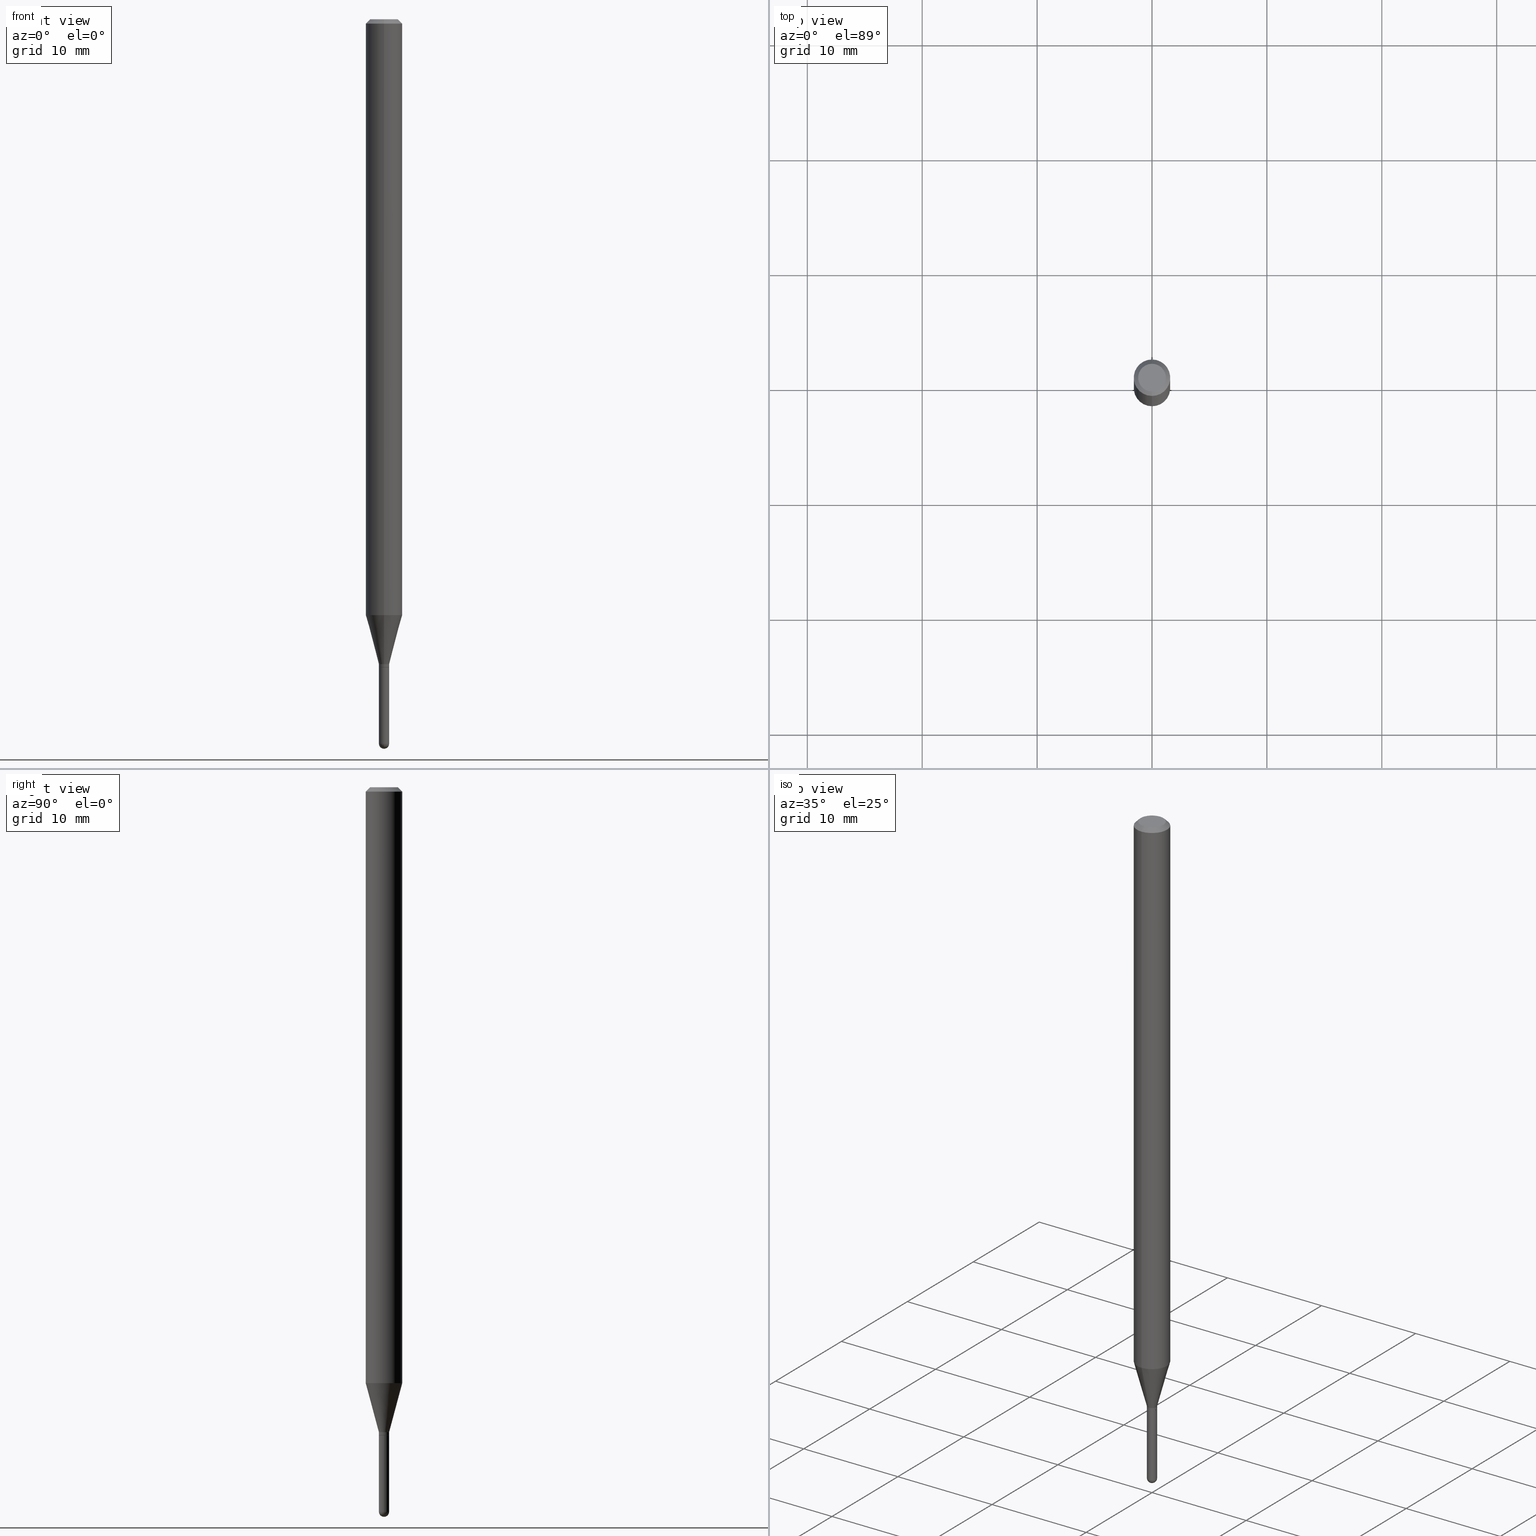
[diagram: canonical four-view strip — front | top / right | iso, engineering-drawing reading convention]
A machine part, canonical four-view strip (front | top / right | iso — engineering-drawing reading convention). The complete STEP part file that produces these views, byte-faithful:
ISO-10303-21;
HEADER;
FILE_DESCRIPTION (( 'STEP AP203' ),
    '1' );
FILE_NAME ('02753.STEP',
    '2024-03-07T21:14:14',
    ( '' ),
    ( '' ),
    'SwSTEP 2.0',
    'SolidWorks 2023',
    '' );
FILE_SCHEMA (( 'CONFIG_CONTROL_DESIGN' ));
ENDSEC;

DATA;
#1 = ORIENTED_EDGE ( 'NONE', *, *, #501, .F. ) ;
#2 = DIRECTION ( 'NONE',  ( -2.445439854335356088E-29, 3.491522799539868353E-15, 1.000000000000000000 ) ) ;
#3 = ORIENTED_EDGE ( 'NONE', *, *, #23, .F. ) ;
#4 = AXIS2_PLACEMENT_3D ( 'NONE', #469, #112, #233 ) ;
#5 = DIRECTION ( 'NONE',  ( -1.000000000000000000, 6.982962677686265922E-15, -4.876176775795935793E-29 ) ) ;
#6 = VERTEX_POINT ( 'NONE', #265 ) ;
#7 = DATE_TIME_ROLE ( 'classification_date' ) ;
#8 = VERTEX_POINT ( 'NONE', #353 ) ;
#9 = DATE_AND_TIME ( #90, #28 ) ;
#10 = DIRECTION ( 'NONE',  ( -2.445439854335356088E-29, 3.491522799539868353E-15, 1.000000000000000000 ) ) ;
#11 = AXIS2_PLACEMENT_3D ( 'NONE', #467, #2, #188 ) ;
#12 =( NAMED_UNIT ( * ) PLANE_ANGLE_UNIT ( ) SI_UNIT ( $, .RADIAN. ) );
#13 = DIRECTION ( 'NONE',  ( 1.000000000000000000, -6.982962677686265922E-15, 4.876176775795936353E-29 ) ) ;
#14 = SECURITY_CLASSIFICATION_LEVEL ( 'unclassified' ) ;
#15 = CARTESIAN_POINT ( 'NONE',  ( 5.428876476624489233E-29, -7.751180614978508027E-15, -2.219999999999999751 ) ) ;
#16 = ORIENTED_EDGE ( 'NONE', *, *, #341, .T. ) ;
#17 = PERSON_AND_ORGANIZATION ( #396, #391 ) ;
#18 = CARTESIAN_POINT ( 'NONE',  ( -1.187103655206122486E-16, -0.01700000000000775197, -2.219999999999999751 ) ) ;
#19 = VERTEX_POINT ( 'NONE', #422 ) ;
#20 = CIRCLE ( 'NONE', #72, 0.01749999999999965125 ) ;
#21 = DIRECTION ( 'NONE',  ( 6.982962677686265922E-15, 1.000000000000000000, -3.483106191921935554E-15 ) ) ;
#22 = DIRECTION ( 'NONE',  ( -6.982962677686265922E-15, -1.000000000000000000, 3.491522799539868353E-15 ) ) ;
#23 = EDGE_CURVE ( 'NONE', #135, #8, #311, .T. ) ;
#24 = ORIENTED_EDGE ( 'NONE', *, *, #29, .T. ) ;
#25 = UNCERTAINTY_MEASURE_WITH_UNIT (LENGTH_MEASURE( 1.000000000000000082E-05 ), #254, 'distance_accuracy_value', 'NONE');
#26 = DIRECTION ( 'NONE',  ( -1.000000000000000000, 6.982962677686265133E-15, -4.883557194083112901E-29 ) ) ;
#27 = AXIS2_PLACEMENT_3D ( 'NONE', #15, #413, #255 ) ;
#28 = LOCAL_TIME ( 16, 14, 14.00000000000000000, #362 ) ;
#29 = EDGE_CURVE ( 'NONE', #111, #256, #41, .T. ) ;
#30 = DIRECTION ( 'NONE',  ( -2.445468806185136877E-29, 3.491481338843145188E-15, 1.000000000000000000 ) ) ;
#31 = DIRECTION ( 'NONE',  ( -2.445439854335356088E-29, 3.491522799539868353E-15, 1.000000000000000000 ) ) ;
#32 = DIMENSIONAL_EXPONENTS ( 1.000000000000000000, 0.000000000000000000, 0.000000000000000000, 0.000000000000000000, 0.000000000000000000, 0.000000000000000000, 0.000000000000000000 ) ;
#33 = FACE_OUTER_BOUND ( 'NONE', #38, .T. ) ;
#34 = DIRECTION ( 'NONE',  ( 1.000000000000000000, -6.982962677686303787E-15, 0.000000000000000000 ) ) ;
#35 = DIRECTION ( 'NONE',  ( 1.000000000000000000, -6.982962677686303787E-15, 0.000000000000000000 ) ) ;
#36 = ORIENTED_EDGE ( 'NONE', *, *, #264, .F. ) ;
#37 = CARTESIAN_POINT ( 'NONE',  ( 1.222018468595639460E-16, 0.01749999999999225092, -2.220000000000000195 ) ) ;
#38 = EDGE_LOOP ( 'NONE', ( #212, #119 ) ) ;
#39 = DIRECTION ( 'NONE',  ( -6.982962677686265922E-15, -1.000000000000000000, 0.000000000000000000 ) ) ;
#40 = VERTEX_POINT ( 'NONE', #492 ) ;
#41 = CIRCLE ( 'NONE', #207, 0.01750000000000000167 ) ;
#42 = AXIS2_PLACEMENT_3D ( 'NONE', #484, #84, #126 ) ;
#43 = ADVANCED_FACE ( 'NONE', ( #289 ), #487, .T. ) ;
#44 = ORIENTED_EDGE ( 'NONE', *, *, #81, .F. ) ;
#45 = CALENDAR_DATE ( 2024, 7, 3 ) ;
#46 = LINE ( 'NONE', #203, #456 ) ;
#47 = PERSON_AND_ORGANIZATION ( #396, #391 ) ;
#48 = DIRECTION ( 'NONE',  ( 1.839019923739599921E-15, 0.2588190451025249028, 0.9659258262890670910 ) ) ;
#49 = CONICAL_SURFACE ( 'NONE', #312, 0.01749999999999965125, 0.2617993877991502405 ) ;
#50 = VECTOR ( 'NONE', #70, 39.37007874015748143 ) ;
#51 =( NAMED_UNIT ( * ) SI_UNIT ( $, .STERADIAN. ) SOLID_ANGLE_UNIT ( ) );
#52 = FACE_OUTER_BOUND ( 'NONE', #279, .T. ) ;
#53 = CALENDAR_DATE ( 2024, 7, 3 ) ;
#54 = DIRECTION ( 'NONE',  ( 6.982962677686265133E-15, 1.000000000000000000, 0.000000000000000000 ) ) ;
#55 = EDGE_CURVE ( 'NONE', #432, #256, #308, .T. ) ;
#56 = DIRECTION ( 'NONE',  ( -2.445468806185136597E-29, 3.491481338843145583E-15, 1.000000000000000000 ) ) ;
#57 = ORIENTED_EDGE ( 'NONE', *, *, #505, .F. ) ;
#58 = AXIS2_PLACEMENT_3D ( 'NONE', #416, #56, #218 ) ;
#59 = AXIS2_PLACEMENT_3D ( 'NONE', #104, #257, #68 ) ;
#60 = PLANE ( 'NONE',  #294 ) ;
#61 = CARTESIAN_POINT ( 'NONE',  ( -0.01750000000000000167, -8.085000519196929478E-15, -2.220000000000000195 ) ) ;
#62 = EDGE_CURVE ( 'NONE', #181, #135, #384, .T. ) ;
#63 = ORIENTED_EDGE ( 'NONE', *, *, #29, .F. ) ;
#64 = CARTESIAN_POINT ( 'NONE',  ( 6.069379770348537778E-29, -8.669745555576616428E-15, -2.482499999999999929 ) ) ;
#65 = ORIENTED_EDGE ( 'NONE', *, *, #151, .T. ) ;
#66 = DIRECTION ( 'NONE',  ( -2.445468806185136597E-29, 3.491481338843145583E-15, 1.000000000000000000 ) ) ;
#67 = CIRCLE ( 'NONE', #440, 0.01750000000000000167 ) ;
#68 = DIRECTION ( 'NONE',  ( -6.982962677686265922E-15, -1.000000000000000000, 3.483106191921935554E-15 ) ) ;
#69 = CARTESIAN_POINT ( 'NONE',  ( 5.404422078081136622E-29, -7.716265386983106677E-15, -2.209999999999999520 ) ) ;
#70 = DIRECTION ( 'NONE',  ( -2.445439854335356088E-29, 3.491522799539868353E-15, 1.000000000000000000 ) ) ;
#71 = ORIENTED_EDGE ( 'NONE', *, *, #170, .F. ) ;
#72 = AXIS2_PLACEMENT_3D ( 'NONE', #69, #110, #350 ) ;
#73 = FACE_OUTER_BOUND ( 'NONE', #216, .T. ) ;
#74 = ADVANCED_FACE ( 'NONE', ( #442 ), #100, .T. ) ;
#75 = ORIENTED_EDGE ( 'NONE', *, *, #394, .F. ) ;
#76 = DIRECTION ( 'NONE',  ( -2.445439854335356088E-29, 3.491522799539868353E-15, 1.000000000000000000 ) ) ;
#77 = EDGE_LOOP ( 'NONE', ( #1, #75 ) ) ;
#78 = CC_DESIGN_DATE_AND_TIME_ASSIGNMENT ( #407, #7, ( #447 ) ) ;
#79 = DIRECTION ( 'NONE',  ( -6.982962677686265922E-15, -1.000000000000000000, 0.000000000000000000 ) ) ;
#80 = ORIENTED_EDGE ( 'NONE', *, *, #264, .T. ) ;
#81 = EDGE_CURVE ( 'NONE', #19, #361, #148, .T. ) ;
#82 = PERSON_AND_ORGANIZATION_ROLE ( 'creator' ) ;
#83 = CARTESIAN_POINT ( 'NONE',  ( 4.993729317835632026E-29, -7.129891065218049224E-15, -2.042057713659399365 ) ) ;
#84 = DIRECTION ( 'NONE',  ( 0.000000000000000000, 0.000000000000000000, 1.000000000000000000 ) ) ;
#85 = CARTESIAN_POINT ( 'NONE',  ( 6.069379770348537778E-29, -8.669745555576616428E-15, -2.482499999999999929 ) ) ;
#86 = EDGE_CURVE ( 'NONE', #320, #361, #333, .T. ) ;
#87 = PERSON_AND_ORGANIZATION_ROLE ( 'design_supplier' ) ;
#88 = CARTESIAN_POINT ( 'NONE',  ( 1.207922650792713238E-16, 0.01699999999999225048, -2.219999999999999751 ) ) ;
#89 = APPROVAL_PERSON_ORGANIZATION ( #322, #399, #481 ) ;
#90 = CALENDAR_DATE ( 2024, 7, 3 ) ;
#91 = CC_DESIGN_APPROVAL ( #221, ( #447 ) ) ;
#92 = DIRECTION ( 'NONE',  ( -6.982962677686265922E-15, -1.000000000000000000, 3.491522799539868747E-15 ) ) ;
#93 = ORIENTED_EDGE ( 'NONE', *, *, #170, .T. ) ;
#94 = ADVANCED_FACE ( 'NONE', ( #324 ), #198, .T. ) ;
#95 = CARTESIAN_POINT ( 'NONE',  ( 4.440892098501123144E-16, 0.06249999999999285294, -2.042057713659399809 ) ) ;
#96 = CYLINDRICAL_SURFACE ( 'NONE', #242, 0.06250000000000000000 ) ;
#97 = ORIENTED_EDGE ( 'NONE', *, *, #364, .F. ) ;
#98 = EDGE_CURVE ( 'NONE', #253, #135, #169, .T. ) ;
#99 = AXIS2_PLACEMENT_3D ( 'NONE', #215, #133, #441 ) ;
#100 = CONICAL_SURFACE ( 'NONE', #99, 0.01749999999999965125, 0.2617993877991502405 ) ;
#101 =( GEOMETRIC_REPRESENTATION_CONTEXT ( 3 ) GLOBAL_UNCERTAINTY_ASSIGNED_CONTEXT ( ( #25 ) ) GLOBAL_UNIT_ASSIGNED_CONTEXT ( ( #254, #12, #51 ) ) REPRESENTATION_CONTEXT ( 'NONE', 'WORKASPACE' ) );
#102 = CARTESIAN_POINT ( 'NONE',  ( -4.364351673553912750E-16, -0.06250000000000005551, -0.01500000000000011047 ) ) ;
#103 = VERTEX_POINT ( 'NONE', #18 ) ;
#104 = CARTESIAN_POINT ( 'NONE',  ( 3.668159781503114515E-31, -5.237284199309917136E-17, -0.01500000000000032904 ) ) ;
#105 = ORIENTED_EDGE ( 'NONE', *, *, #62, .T. ) ;
#106 = DIRECTION ( 'NONE',  ( 6.982962677686265133E-15, 1.000000000000000000, 0.000000000000000000 ) ) ;
#107 = CARTESIAN_POINT ( 'NONE',  ( 6.070876311354603530E-29, -8.667602423678111529E-15, -2.482500000000000817 ) ) ;
#108 = ADVANCED_FACE ( 'NONE', ( #129 ), #127, .T. ) ;
#109 = DIRECTION ( 'NONE',  ( -2.445439854335356088E-29, 3.491522799539868353E-15, 1.000000000000000000 ) ) ;
#110 = DIRECTION ( 'NONE',  ( -2.445439854335356088E-29, 3.491522799539868353E-15, 1.000000000000000000 ) ) ;
#111 = VERTEX_POINT ( 'NONE', #329 ) ;
#112 = DIRECTION ( 'NONE',  ( -2.445468806185136597E-29, 3.491481338843145583E-15, 1.000000000000000000 ) ) ;
#113 = DIRECTION ( 'NONE',  ( -2.445439854335356088E-29, 3.491522799539868353E-15, 1.000000000000000000 ) ) ;
#114 = CIRCLE ( 'NONE', #507, 0.01700000000000000122 ) ;
#115 = DIRECTION ( 'NONE',  ( 1.000000000000000000, -6.982962677686303787E-15, 0.000000000000000000 ) ) ;
#116 = ORIENTED_EDGE ( 'NONE', *, *, #360, .T. ) ;
#117 = EDGE_CURVE ( 'NONE', #6, #258, #331, .T. ) ;
#118 = DIRECTION ( 'NONE',  ( -2.445439854335356088E-29, 3.491522799539868353E-15, 1.000000000000000000 ) ) ;
#119 = ORIENTED_EDGE ( 'NONE', *, *, #146, .T. ) ;
#120 = ADVANCED_FACE ( 'NONE', ( #52 ), #451, .T. ) ;
#121 = DIRECTION ( 'NONE',  ( 1.000000000000000000, -6.982962677686248567E-15, 0.000000000000000000 ) ) ;
#122 = CIRCLE ( 'NONE', #480, 0.01750000000000000167 ) ;
#123 = CIRCLE ( 'NONE', #208, 0.04749999999999999362 ) ;
#124 = MECHANICAL_CONTEXT ( 'NONE', #415, 'mechanical' ) ;
#125 = DIRECTION ( 'NONE',  ( -2.445439854335356088E-29, 3.491522799539868353E-15, 1.000000000000000000 ) ) ;
#126 = DIRECTION ( 'NONE',  ( 1.000000000000000000, 0.000000000000000000, 0.000000000000000000 ) ) ;
#127 = CYLINDRICAL_SURFACE ( 'NONE', #424, 0.01750000000000000167 ) ;
#128 = APPLICATION_PROTOCOL_DEFINITION ( 'international standard', 'config_control_design', 1994, #415 ) ;
#129 = FACE_OUTER_BOUND ( 'NONE', #414, .T. ) ;
#130 = ORIENTED_EDGE ( 'NONE', *, *, #382, .F. ) ;
#131 = AXIS2_PLACEMENT_3D ( 'NONE', #248, #410, #368 ) ;
#132 = PERSON_AND_ORGANIZATION ( #396, #391 ) ;
#133 = DIRECTION ( 'NONE',  ( -2.445439854335356088E-29, 3.491522799539868353E-15, 1.000000000000000000 ) ) ;
#134 = EDGE_CURVE ( 'NONE', #488, #498, #390, .T. ) ;
#135 = VERTEX_POINT ( 'NONE', #95 ) ;
#136 = CARTESIAN_POINT ( 'NONE',  ( 1.225686219186703432E-16, 0.01699999999999225048, -2.219999999999999751 ) ) ;
#137 = ADVANCED_FACE ( 'NONE', ( #363 ), #334, .T. ) ;
#138 = FACE_OUTER_BOUND ( 'NONE', #401, .T. ) ;
#139 = ORIENTED_EDGE ( 'NONE', *, *, #464, .T. ) ;
#140 = CONICAL_SURFACE ( 'NONE', #276, 0.06250000000000000000, 0.7853981633974483900 ) ;
#141 = EDGE_CURVE ( 'NONE', #274, #258, #240, .T. ) ;
#142 = DIRECTION ( 'NONE',  ( -2.445439854335356088E-29, 3.491522799539868353E-15, 1.000000000000000000 ) ) ;
#143 = DESIGN_CONTEXT ( 'detailed design', #508, 'design' ) ;
#144 = DIRECTION ( 'NONE',  ( -2.445439854335356088E-29, 3.491522799539868353E-15, 1.000000000000000000 ) ) ;
#145 = CARTESIAN_POINT ( 'NONE',  ( 5.428876476624489233E-29, -7.751180614978508027E-15, -2.219999999999999751 ) ) ;
#146 = EDGE_CURVE ( 'NONE', #258, #274, #122, .T. ) ;
#147 =( LENGTH_UNIT ( ) NAMED_UNIT ( * ) SI_UNIT ( $, .METRE. ) );
#148 = CIRCLE ( 'NONE', #131, 0.01749999999999965472 ) ;
#149 = CARTESIAN_POINT ( 'NONE',  ( 6.070876311354603530E-29, -8.667602423678111529E-15, -2.482500000000000817 ) ) ;
#150 = VERTEX_POINT ( 'NONE', #284 ) ;
#151 = EDGE_CURVE ( 'NONE', #135, #181, #259, .T. ) ;
#152 = CARTESIAN_POINT ( 'NONE',  ( 6.069379770348537778E-29, -8.669745555576616428E-15, -2.482499999999999929 ) ) ;
#153 = ORIENTED_EDGE ( 'NONE', *, *, #449, .T. ) ;
#154 = CARTESIAN_POINT ( 'NONE',  ( 5.428876476624489233E-29, -7.751180614978508027E-15, -2.219999999999999751 ) ) ;
#155 = CC_DESIGN_PERSON_AND_ORGANIZATION_ASSIGNMENT ( #17, #213, ( #338 ) ) ;
#156 = AXIS2_PLACEMENT_3D ( 'NONE', #243, #175, #21 ) ;
#157 = EDGE_LOOP ( 'NONE', ( #105, #315, #36, #184 ) ) ;
#158 = CC_DESIGN_APPROVAL ( #399, ( #314 ) ) ;
#159 = CARTESIAN_POINT ( 'NONE',  ( 3.840629472727447874E-16, 0.04749999999999999362, -4.939923113072091241E-16 ) ) ;
#160 = ORIENTED_EDGE ( 'NONE', *, *, #230, .F. ) ;
#161 = APPROVAL_STATUS ( 'not_yet_approved' ) ;
#162 = ORIENTED_EDGE ( 'NONE', *, *, #141, .F. ) ;
#163 = PRODUCT_DEFINITION ( 'UNKNOWN', '', #314, #143 ) ;
#164 = DIRECTION ( 'NONE',  ( -2.445439854335356088E-29, 3.491522799539868353E-15, 1.000000000000000000 ) ) ;
#165 = AXIS2_PLACEMENT_3D ( 'NONE', #83, #10, #405 ) ;
#166 = LOCAL_TIME ( 16, 14, 14.00000000000000000, #288 ) ;
#167 = CIRCLE ( 'NONE', #349, 0.01749999999999973799 ) ;
#168 = PERSON_AND_ORGANIZATION ( #396, #391 ) ;
#169 = LINE ( 'NONE', #445, #283 ) ;
#170 = EDGE_CURVE ( 'NONE', #498, #235, #46, .T. ) ;
#171 = APPROVAL_STATUS ( 'not_yet_approved' ) ;
#172 = DIRECTION ( 'NONE',  ( -2.445468806185136597E-29, 3.491481338843145583E-15, 1.000000000000000000 ) ) ;
#173 = EDGE_LOOP ( 'NONE', ( #458, #93, #80, #510 ) ) ;
#174 = CALENDAR_DATE ( 2024, 7, 3 ) ;
#175 = DIRECTION ( 'NONE',  ( 2.445439854335356088E-29, -3.491522799539868353E-15, -1.000000000000000000 ) ) ;
#176 = CC_DESIGN_PERSON_AND_ORGANIZATION_ASSIGNMENT ( #365, #286, ( #314 ) ) ;
#177 = ORIENTED_EDGE ( 'NONE', *, *, #378, .F. ) ;
#178 = VECTOR ( 'NONE', #113, 39.37007874015748143 ) ;
#179 = DIRECTION ( 'NONE',  ( -6.982962677686265922E-15, -1.000000000000000000, 3.491522799539868747E-15 ) ) ;
#180 = EDGE_CURVE ( 'NONE', #488, #8, #502, .T. ) ;
#181 = VERTEX_POINT ( 'NONE', #269 ) ;
#182 = CARTESIAN_POINT ( 'NONE',  ( 1.222018468595694434E-16, 0.01749999999999120315, -2.482500000000000817 ) ) ;
#183 = DIRECTION ( 'NONE',  ( -1.000000000000000000, 6.982962677686265133E-15, -4.883557194083112901E-29 ) ) ;
#184 = ORIENTED_EDGE ( 'NONE', *, *, #360, .F. ) ;
#185 = AXIS2_PLACEMENT_3D ( 'NONE', #37, #428, #5 ) ;
#186 = CARTESIAN_POINT ( 'NONE',  ( 0.01750000000000000167, -1.222018468595096625E-16, 8.533309357642889039E-31 ) ) ;
#187 = FACE_OUTER_BOUND ( 'NONE', #299, .T. ) ;
#188 = DIRECTION ( 'NONE',  ( -6.982962677686265922E-15, -1.000000000000000000, 3.483106191921935554E-15 ) ) ;
#189 = LINE ( 'NONE', #431, #419 ) ;
#190 = CC_DESIGN_APPROVAL ( #358, ( #163 ) ) ;
#191 = ADVANCED_FACE ( 'NONE', ( #261 ), #49, .T. ) ;
#192 = ORIENTED_EDGE ( 'NONE', *, *, #62, .F. ) ;
#193 = CARTESIAN_POINT ( 'NONE',  ( 5.404422078081136622E-29, -7.716265386983106677E-15, -2.209999999999999520 ) ) ;
#194 = ORIENTED_EDGE ( 'NONE', *, *, #439, .F. ) ;
#195 = DIRECTION ( 'NONE',  ( -6.982962677686265922E-15, -1.000000000000000000, 0.000000000000000000 ) ) ;
#196 = ORIENTED_EDGE ( 'NONE', *, *, #341, .F. ) ;
#197 = CARTESIAN_POINT ( 'NONE',  ( 8.024588080059081433E-45, -1.145725673390447767E-30, -3.281449783290653832E-16 ) ) ;
#198 = CONICAL_SURFACE ( 'NONE', #156, 0.06250000000000000000, 0.7853981633974483900 ) ;
#199 = EDGE_LOOP ( 'NONE', ( #3, #65, #116, #194 ) ) ;
#200 = CIRCLE ( 'NONE', #335, 0.01749999999999965125 ) ;
#201 = ORIENTED_EDGE ( 'NONE', *, *, #394, .T. ) ;
#202 = DATE_AND_TIME ( #45, #166 ) ;
#203 = CARTESIAN_POINT ( 'NONE',  ( -4.287811248607203282E-16, -0.06250000000000005551, -0.01500000000000011047 ) ) ;
#204 = PERSON_AND_ORGANIZATION ( #396, #391 ) ;
#205 = CARTESIAN_POINT ( 'NONE',  ( 0.000000000000000000, 0.000000000000000000, 0.000000000000000000 ) ) ;
#206 = ADVANCED_FACE ( 'NONE', ( #306 ), #340, .T. ) ;
#207 = AXIS2_PLACEMENT_3D ( 'NONE', #225, #389, #34 ) ;
#208 = AXIS2_PLACEMENT_3D ( 'NONE', #197, #509, #313 ) ;
#209 = CC_DESIGN_SECURITY_CLASSIFICATION ( #447, ( #314 ) ) ;
#210 = DATE_AND_TIME ( #174, #385 ) ;
#211 = CARTESIAN_POINT ( 'NONE',  ( 8.024588080059081433E-45, -1.145725673390447767E-30, -3.281449783290653832E-16 ) ) ;
#212 = ORIENTED_EDGE ( 'NONE', *, *, #141, .T. ) ;
#213 = PERSON_AND_ORGANIZATION_ROLE ( 'design_owner' ) ;
#214 = CC_DESIGN_PERSON_AND_ORGANIZATION_ASSIGNMENT ( #168, #369, ( #447 ) ) ;
#215 = CARTESIAN_POINT ( 'NONE',  ( 5.404422078081136622E-29, -7.716265386983106677E-15, -2.209999999999999520 ) ) ;
#216 = EDGE_LOOP ( 'NONE', ( #474, #395, #496, #16, #318 ) ) ;
#217 = ADVANCED_FACE ( 'NONE', ( #347 ), #96, .T. ) ;
#218 = DIRECTION ( 'NONE',  ( 1.000000000000000000, -6.982962677686248567E-15, 0.000000000000000000 ) ) ;
#219 = AXIS2_PLACEMENT_3D ( 'NONE', #145, #300, #462 ) ;
#220 = DIRECTION ( 'NONE',  ( -2.445439854335355808E-29, 3.491522799539868353E-15, 1.000000000000000000 ) ) ;
#221 = APPROVAL ( #171, 'UNSPECIFIED' ) ;
#222 = CARTESIAN_POINT ( 'NONE',  ( 0.000000000000000000, 0.000000000000000000, 0.000000000000000000 ) ) ;
#223 = EDGE_LOOP ( 'NONE', ( #450, #398, #339, #251 ) ) ;
#224 = DIRECTION ( 'NONE',  ( 1.000000000000000000, -6.982962677686303787E-15, 0.000000000000000000 ) ) ;
#225 = CARTESIAN_POINT ( 'NONE',  ( 6.070876311354603530E-29, -8.667602423678111529E-15, -2.482500000000000817 ) ) ;
#226 = LOCAL_TIME ( 16, 14, 14.00000000000000000, #446 ) ;
#227 = FACE_OUTER_BOUND ( 'NONE', #199, .T. ) ;
#228 = EDGE_CURVE ( 'NONE', #19, #40, #387, .T. ) ;
#229 = DIRECTION ( 'NONE',  ( 4.937700262164548042E-15, 0.7071067811865451302, -0.7071067811865499042 ) ) ;
#230 = EDGE_CURVE ( 'NONE', #6, #150, #67, .T. ) ;
#231 = LINE ( 'NONE', #280, #367 ) ;
#232 = VECTOR ( 'NONE', #229, 39.37007874015748143 ) ;
#233 = DIRECTION ( 'NONE',  ( 1.000000000000000000, -6.982962677686265922E-15, 4.876176775795936353E-29 ) ) ;
#234 = CIRCLE ( 'NONE', #457, 0.01750000000000000167 ) ;
#235 = VERTEX_POINT ( 'NONE', #102 ) ;
#236 = DIRECTION ( 'NONE',  ( -2.445468806185136597E-29, 3.491481338843145583E-15, 1.000000000000000000 ) ) ;
#237 = ORIENTED_EDGE ( 'NONE', *, *, #477, .F. ) ;
#238 = CARTESIAN_POINT ( 'NONE',  ( 5.428876476624489233E-29, -7.751180614978508027E-15, -2.219999999999999751 ) ) ;
#239 = ORIENTED_EDGE ( 'NONE', *, *, #464, .F. ) ;
#240 = CIRCLE ( 'NONE', #58, 0.01750000000000000167 ) ;
#241 = ORIENTED_EDGE ( 'NONE', *, *, #511, .F. ) ;
#242 = AXIS2_PLACEMENT_3D ( 'NONE', #346, #461, #22 ) ;
#243 = CARTESIAN_POINT ( 'NONE',  ( 3.668159781503114515E-31, -5.237284199309917136E-17, -0.01500000000000032904 ) ) ;
#244 = PERSON_AND_ORGANIZATION ( #396, #391 ) ;
#245 = ADVANCED_FACE ( 'NONE', ( #418 ), #60, .F. ) ;
#246 = CARTESIAN_POINT ( 'NONE',  ( 4.993729317835632026E-29, -7.129891065218049224E-15, -2.042057713659399365 ) ) ;
#247 = CALENDAR_DATE ( 2024, 7, 3 ) ;
#248 = CARTESIAN_POINT ( 'NONE',  ( 5.427653756697323004E-29, -7.749434853578739379E-15, -2.219500000000000028 ) ) ;
#249 = VECTOR ( 'NONE', #406, 39.37007874015748143 ) ;
#250 = CC_DESIGN_DATE_AND_TIME_ASSIGNMENT ( #202, #326, ( #163 ) ) ;
#251 = ORIENTED_EDGE ( 'NONE', *, *, #151, .F. ) ;
#252 = DIRECTION ( 'NONE',  ( -6.982962677686266711E-15, -1.000000000000000000, 3.491522799539868747E-15 ) ) ;
#253 = VERTEX_POINT ( 'NONE', #459 ) ;
#254 =( CONVERSION_BASED_UNIT ( 'INCH', #319 ) LENGTH_UNIT ( ) NAMED_UNIT ( #32 ) );
#255 = DIRECTION ( 'NONE',  ( -6.982962677686265922E-15, -1.000000000000000000, 0.000000000000000000 ) ) ;
#256 = VERTEX_POINT ( 'NONE', #182 ) ;
#257 = DIRECTION ( 'NONE',  ( -2.445439854335356088E-29, 3.491522799539868353E-15, 1.000000000000000000 ) ) ;
#258 = VERTEX_POINT ( 'NONE', #61 ) ;
#259 = CIRCLE ( 'NONE', #165, 0.06250000000000000000 ) ;
#260 = CIRCLE ( 'NONE', #491, 0.01749999999999965472 ) ;
#261 = FACE_OUTER_BOUND ( 'NONE', #223, .T. ) ;
#262 = EDGE_LOOP ( 'NONE', ( #417, #476, #160, #239 ) ) ;
#263 = CYLINDRICAL_SURFACE ( 'NONE', #375, 0.06250000000000000000 ) ;
#264 = EDGE_CURVE ( 'NONE', #235, #8, #392, .T. ) ;
#265 = CARTESIAN_POINT ( 'NONE',  ( -0.01750000000000000513, -8.085000519196929478E-15, -2.482500000000000817 ) ) ;
#266 = DIRECTION ( 'NONE',  ( -6.982962677686265922E-15, -1.000000000000000000, 0.000000000000000000 ) ) ;
#267 = PRODUCT_RELATED_PRODUCT_CATEGORY ( 'detail', '', ( #338 ) ) ;
#268 = VECTOR ( 'NONE', #142, 39.37007874015748143 ) ;
#269 = CARTESIAN_POINT ( 'NONE',  ( -4.364351673553418233E-16, -0.06250000000000713318, -2.042057713659398921 ) ) ;
#270 = ADVANCED_FACE ( 'NONE', ( #227 ), #263, .T. ) ;
#271 = DIRECTION ( 'NONE',  ( -2.445439854335356088E-29, 3.491522799539868353E-15, 1.000000000000000000 ) ) ;
#272 = DIRECTION ( 'NONE',  ( -4.937700262164674260E-15, -0.7071067811865632269, 0.7071067811865319186 ) ) ;
#273 = CC_DESIGN_PERSON_AND_ORGANIZATION_ASSIGNMENT ( #204, #82, ( #163 ) ) ;
#274 = VERTEX_POINT ( 'NONE', #497 ) ;
#275 = DIRECTION ( 'NONE',  ( 2.445439854335355808E-29, -3.491522799539868353E-15, -1.000000000000000000 ) ) ;
#276 = AXIS2_PLACEMENT_3D ( 'NONE', #386, #377, #421 ) ;
#277 = ORIENTED_EDGE ( 'NONE', *, *, #477, .T. ) ;
#278 = FACE_OUTER_BOUND ( 'NONE', #359, .T. ) ;
#279 = EDGE_LOOP ( 'NONE', ( #241, #411, #435, #336 ) ) ;
#280 = CARTESIAN_POINT ( 'NONE',  ( 1.243449787580150299E-16, 0.01749999999999965125, -6.110164899194648280E-17 ) ) ;
#281 = ORIENTED_EDGE ( 'NONE', *, *, #134, .T. ) ;
#282 = APPROVAL_DATE_TIME ( #9, #358 ) ;
#283 = VECTOR ( 'NONE', #48, 39.37007874015748143 ) ;
#284 = CARTESIAN_POINT ( 'NONE',  ( -1.243449787579559146E-16, -0.01750000000000853650, -2.482500000000000817 ) ) ;
#285 = AXIS2_PLACEMENT_3D ( 'NONE', #309, #275, #356 ) ;
#286 = PERSON_AND_ORGANIZATION_ROLE ( 'creator' ) ;
#287 = DIRECTION ( 'NONE',  ( -6.982962677686265922E-15, -1.000000000000000000, 4.370956789862821150E-15 ) ) ;
#288 = COORDINATED_UNIVERSAL_TIME_OFFSET ( 5, 0, .BEHIND. ) ;
#289 = FACE_OUTER_BOUND ( 'NONE', #500, .T. ) ;
#290 = CC_DESIGN_PERSON_AND_ORGANIZATION_ASSIGNMENT ( #244, #87, ( #314 ) ) ;
#291 = APPROVAL_ROLE ( '' ) ;
#292 = CARTESIAN_POINT ( 'NONE',  ( 0.000000000000000000, 0.000000000000000000, 0.000000000000000000 ) ) ;
#293 = AXIS2_PLACEMENT_3D ( 'NONE', #292, #164, #179 ) ;
#294 = AXIS2_PLACEMENT_3D ( 'NONE', #337, #220, #305 ) ;
#295 = APPROVAL_PERSON_ORGANIZATION ( #132, #221, #291 ) ;
#296 = ORIENTED_EDGE ( 'NONE', *, *, #117, .T. ) ;
#297 = SHAPE_DEFINITION_REPRESENTATION ( #433, #495 ) ;
#298 = DIRECTION ( 'NONE',  ( -2.445468806185136877E-29, 3.491481338843145188E-15, 1.000000000000000000 ) ) ;
#299 = EDGE_LOOP ( 'NONE', ( #376, #201, #153, #57 ) ) ;
#300 = DIRECTION ( 'NONE',  ( -2.445439854335356088E-29, 3.491522799539868353E-15, 1.000000000000000000 ) ) ;
#301 = ORIENTED_EDGE ( 'NONE', *, *, #180, .T. ) ;
#302 = CARTESIAN_POINT ( 'NONE',  ( 5.404422078081136622E-29, -7.716265386983106677E-15, -2.209999999999999520 ) ) ;
#303 = AXIS2_PLACEMENT_3D ( 'NONE', #455, #183, #106 ) ;
#304 = AXIS2_PLACEMENT_3D ( 'NONE', #393, #236, #35 ) ;
#305 = DIRECTION ( 'NONE',  ( -6.982962677686265922E-15, -1.000000000000000000, 3.491522799539868353E-15 ) ) ;
#306 = FACE_OUTER_BOUND ( 'NONE', #262, .T. ) ;
#307 = DIRECTION ( 'NONE',  ( -4.851104656540964275E-15, -0.7071067811865500152, -0.7071067811865450192 ) ) ;
#308 = CIRCLE ( 'NONE', #471, 0.01749999999999973799 ) ;
#309 = CARTESIAN_POINT ( 'NONE',  ( 3.316907271900976096E-16, 0.04749999999999999362, -3.299198221426764078E-16 ) ) ;
#310 = ORIENTED_EDGE ( 'NONE', *, *, #98, .T. ) ;
#311 = LINE ( 'NONE', #470, #178 ) ;
#312 = AXIS2_PLACEMENT_3D ( 'NONE', #302, #144, #266 ) ;
#313 = DIRECTION ( 'NONE',  ( -6.982962677686266711E-15, -1.000000000000000000, 3.491522799539868747E-15 ) ) ;
#314 = PRODUCT_DEFINITION_FORMATION_WITH_SPECIFIED_SOURCE ( 'ANY', '', #338, .NOT_KNOWN. ) ;
#315 = ORIENTED_EDGE ( 'NONE', *, *, #23, .T. ) ;
#316 = MANIFOLD_SOLID_BREP ( 'Body-Move/Copy2[1]', #366 ) ;
#317 = CARTESIAN_POINT ( 'NONE',  ( 5.427653756697323004E-29, -7.749434853578739379E-15, -2.219500000000000028 ) ) ;
#318 = ORIENTED_EDGE ( 'NONE', *, *, #146, .F. ) ;
#319 = LENGTH_MEASURE_WITH_UNIT ( LENGTH_MEASURE( 0.02539999999999999897 ), #147 );
#320 = VERTEX_POINT ( 'NONE', #136 ) ;
#321 = ADVANCED_FACE ( 'NONE', ( #380 ), #140, .T. ) ;
#322 = PERSON_AND_ORGANIZATION ( #396, #391 ) ;
#323 = CLOSED_SHELL ( 'NONE', ( #43, #137, #94, #217, #74, #191, #270, #321, #420, #245, #345, #120 ) ) ;
#324 = FACE_OUTER_BOUND ( 'NONE', #173, .T. ) ;
#325 = AXIS2_PLACEMENT_3D ( 'NONE', #64, #26, #503 ) ;
#326 = DATE_TIME_ROLE ( 'creation_date' ) ;
#327 = ADVANCED_FACE ( 'NONE', ( #138 ), #499, .T. ) ;
#328 = MANIFOLD_SOLID_BREP ( 'Body-Move/Copy2[2]', #323 ) ;
#329 = CARTESIAN_POINT ( 'NONE',  ( 0.01750000000000000513, -8.331547344814455920E-15, -2.482500000000000817 ) ) ;
#330 = APPROVAL_STATUS ( 'not_yet_approved' ) ;
#331 = LINE ( 'NONE', #485, #490 ) ;
#332 = APPROVAL_DATE_TIME ( #210, #399 ) ;
#333 = LINE ( 'NONE', #88, #249 ) ;
#334 = CONICAL_SURFACE ( 'NONE', #27, 0.01700000000000000122, 0.7853981633974739252 ) ;
#335 = AXIS2_PLACEMENT_3D ( 'NONE', #193, #109, #195 ) ;
#336 = ORIENTED_EDGE ( 'NONE', *, *, #466, .F. ) ;
#337 = CARTESIAN_POINT ( 'NONE',  ( 5.428876476624489233E-29, -7.751180614978508027E-15, -2.219999999999999751 ) ) ;
#338 = PRODUCT ( '02753', '02753', '', ( #124 ) ) ;
#339 = ORIENTED_EDGE ( 'NONE', *, *, #378, .T. ) ;
#340 = SPHERICAL_SURFACE ( 'NONE', #303, 0.01749999999999973799 ) ;
#341 = EDGE_CURVE ( 'NONE', #111, #274, #342, .T. ) ;
#342 = LINE ( 'NONE', #186, #409 ) ;
#343 = EDGE_LOOP ( 'NONE', ( #371, #381, #44, #437 ) ) ;
#344 = CIRCLE ( 'NONE', #472, 0.01700000000000000122 ) ;
#345 = ADVANCED_FACE ( 'NONE', ( #187 ), #463, .T. ) ;
#346 = CARTESIAN_POINT ( 'NONE',  ( 0.000000000000000000, 0.000000000000000000, 0.000000000000000000 ) ) ;
#347 = FACE_OUTER_BOUND ( 'NONE', #157, .T. ) ;
#348 = LINE ( 'NONE', #400, #430 ) ;
#349 = AXIS2_PLACEMENT_3D ( 'NONE', #152, #465, #436 ) ;
#350 = DIRECTION ( 'NONE',  ( -6.982962677686265922E-15, -1.000000000000000000, 0.000000000000000000 ) ) ;
#351 = ORIENTED_EDGE ( 'NONE', *, *, #228, .F. ) ;
#352 = DIRECTION ( 'NONE',  ( -6.982962677686265133E-15, -1.000000000000000000, 0.000000000000000000 ) ) ;
#353 = CARTESIAN_POINT ( 'NONE',  ( 4.440892098501129061E-16, 0.06249999999999995837, -0.01500000000000054588 ) ) ;
#354 = DIRECTION ( 'NONE',  ( -2.445468806185136597E-29, 3.491481338843145583E-15, 1.000000000000000000 ) ) ;
#355 = EDGE_LOOP ( 'NONE', ( #277, #310, #192, #177 ) ) ;
#356 = DIRECTION ( 'NONE',  ( 6.982962677686265922E-15, 1.000000000000000000, -3.491522799539868353E-15 ) ) ;
#357 = CIRCLE ( 'NONE', #11, 0.06250000000000000000 ) ;
#358 = APPROVAL ( #161, 'UNSPECIFIED' ) ;
#359 = EDGE_LOOP ( 'NONE', ( #281, #460 ) ) ;
#360 = EDGE_CURVE ( 'NONE', #181, #235, #454, .T. ) ;
#361 = VERTEX_POINT ( 'NONE', #475 ) ;
#362 = COORDINATED_UNIVERSAL_TIME_OFFSET ( 5, 0, .BEHIND. ) ;
#363 = FACE_OUTER_BOUND ( 'NONE', #343, .T. ) ;
#364 = EDGE_CURVE ( 'NONE', #150, #111, #234, .T. ) ;
#365 = PERSON_AND_ORGANIZATION ( #396, #391 ) ;
#366 = CLOSED_SHELL ( 'NONE', ( #108, #206, #483, #327, #444 ) ) ;
#367 = VECTOR ( 'NONE', #388, 39.37007874015748143 ) ;
#368 = DIRECTION ( 'NONE',  ( -6.982962677686265133E-15, -1.000000000000000000, 0.000000000000000000 ) ) ;
#369 = PERSON_AND_ORGANIZATION_ROLE ( 'classification_officer' ) ;
#370 = DIRECTION ( 'NONE',  ( -2.445439854335356088E-29, 3.491522799539868353E-15, 1.000000000000000000 ) ) ;
#371 = ORIENTED_EDGE ( 'NONE', *, *, #501, .T. ) ;
#372 = DIRECTION ( 'NONE',  ( 1.000000000000000000, -6.982962677686265922E-15, 4.883557194083112340E-29 ) ) ;
#373 = ORIENTED_EDGE ( 'NONE', *, *, #511, .T. ) ;
#374 = CARTESIAN_POINT ( 'NONE',  ( 5.428940749731002707E-29, -7.751088572231783501E-15, -2.220000000000000195 ) ) ;
#375 = AXIS2_PLACEMENT_3D ( 'NONE', #222, #31, #494 ) ;
#376 = ORIENTED_EDGE ( 'NONE', *, *, #86, .F. ) ;
#377 = DIRECTION ( 'NONE',  ( 2.445439854335356088E-29, -3.491522799539868353E-15, -1.000000000000000000 ) ) ;
#378 = EDGE_CURVE ( 'NONE', #40, #181, #189, .T. ) ;
#379 = ORIENTED_EDGE ( 'NONE', *, *, #134, .F. ) ;
#380 = FACE_OUTER_BOUND ( 'NONE', #429, .T. ) ;
#381 = ORIENTED_EDGE ( 'NONE', *, *, #86, .T. ) ;
#382 = EDGE_CURVE ( 'NONE', #432, #150, #167, .T. ) ;
#383 = CARTESIAN_POINT ( 'NONE',  ( 4.364351673553919652E-16, 0.06249999999999995143, -0.01500000000000054588 ) ) ;
#384 = CIRCLE ( 'NONE', #506, 0.06250000000000000000 ) ;
#385 = LOCAL_TIME ( 16, 14, 14.00000000000000000, #443 ) ;
#386 = CARTESIAN_POINT ( 'NONE',  ( 3.668159781503114515E-31, -5.237284199309917136E-17, -0.01500000000000032904 ) ) ;
#387 = LINE ( 'NONE', #423, #268 ) ;
#388 = DIRECTION ( 'NONE',  ( -2.445439854335356088E-29, 3.491522799539868353E-15, 1.000000000000000000 ) ) ;
#389 = DIRECTION ( 'NONE',  ( -2.445468806185136597E-29, 3.491481338843145583E-15, 1.000000000000000000 ) ) ;
#390 = CIRCLE ( 'NONE', #438, 0.04749999999999999362 ) ;
#391 = ORGANIZATION ( 'UNSPECIFIED', 'UNSPECIFIED', '' ) ;
#392 = CIRCLE ( 'NONE', #59, 0.06250000000000000000 ) ;
#393 = CARTESIAN_POINT ( 'NONE',  ( 6.070876311354603530E-29, -8.667602423678111529E-15, -2.482500000000000817 ) ) ;
#394 = EDGE_CURVE ( 'NONE', #320, #103, #114, .T. ) ;
#395 = ORIENTED_EDGE ( 'NONE', *, *, #230, .T. ) ;
#396 = PERSON ( 'UNSPECIFIED', 'UNSPECIFIED', 'UNSPECIFIED', ('UNSPECIFIED'), ('UNSPECIFIED'), ('UNSPECIFIED') ) ;
#397 = PLANE ( 'NONE',  #185 ) ;
#398 = ORIENTED_EDGE ( 'NONE', *, *, #466, .T. ) ;
#399 = APPROVAL ( #330, 'UNSPECIFIED' ) ;
#400 = CARTESIAN_POINT ( 'NONE',  ( -1.187103655206122486E-16, -0.01700000000000775197, -2.219999999999999751 ) ) ;
#401 = EDGE_LOOP ( 'NONE', ( #130, #403, #63, #97 ) ) ;
#402 = APPROVAL_PERSON_ORGANIZATION ( #47, #358, #404 ) ;
#403 = ORIENTED_EDGE ( 'NONE', *, *, #55, .T. ) ;
#404 = APPROVAL_ROLE ( '' ) ;
#405 = DIRECTION ( 'NONE',  ( -6.982962677686265922E-15, -1.000000000000000000, 4.370956789862821150E-15 ) ) ;
#406 = DIRECTION ( 'NONE',  ( 5.024295867788190974E-15, 0.7071067811865681119, 0.7071067811865270336 ) ) ;
#407 = DATE_AND_TIME ( #247, #226 ) ;
#408 = AXIS2_PLACEMENT_3D ( 'NONE', #479, #448, #92 ) ;
#409 = VECTOR ( 'NONE', #30, 39.37007874015748143 ) ;
#410 = DIRECTION ( 'NONE',  ( -2.445439854335356088E-29, 3.491522799539868353E-15, 1.000000000000000000 ) ) ;
#411 = ORIENTED_EDGE ( 'NONE', *, *, #505, .T. ) ;
#412 = COORDINATED_UNIVERSAL_TIME_OFFSET ( 5, 0, .BEHIND. ) ;
#413 = DIRECTION ( 'NONE',  ( -2.445439854335356088E-29, 3.491522799539868353E-15, 1.000000000000000000 ) ) ;
#414 = EDGE_LOOP ( 'NONE', ( #139, #296, #162, #196, #24 ) ) ;
#415 = APPLICATION_CONTEXT ( 'configuration controlled 3d designs of mechanical parts and assemblies' ) ;
#416 = CARTESIAN_POINT ( 'NONE',  ( 5.428940749731002707E-29, -7.751088572231783501E-15, -2.220000000000000195 ) ) ;
#417 = ORIENTED_EDGE ( 'NONE', *, *, #55, .F. ) ;
#418 = FACE_OUTER_BOUND ( 'NONE', #77, .T. ) ;
#419 = VECTOR ( 'NONE', #427, 39.37007874015748143 ) ;
#420 = ADVANCED_FACE ( 'NONE', ( #278 ), #473, .F. ) ;
#421 = DIRECTION ( 'NONE',  ( 6.982962677686265922E-15, 1.000000000000000000, -3.483106191921935554E-15 ) ) ;
#422 = CARTESIAN_POINT ( 'NONE',  ( -1.222018468594533576E-16, -0.01750000000000746098, -2.219500000000000028 ) ) ;
#423 = CARTESIAN_POINT ( 'NONE',  ( -1.222018468595072220E-16, -0.01749999999999965125, 6.110164899194648280E-17 ) ) ;
#424 = AXIS2_PLACEMENT_3D ( 'NONE', #205, #172, #13 ) ;
#425 = CIRCLE ( 'NONE', #304, 0.01750000000000000167 ) ;
#426 = CARTESIAN_POINT ( 'NONE',  ( -4.364351673553916201E-16, -0.06250000000000000000, 2.182201749712417720E-16 ) ) ;
#427 = DIRECTION ( 'NONE',  ( -1.807323732225329745E-15, -0.2588190451025181305, 0.9659258262890689783 ) ) ;
#428 = DIRECTION ( 'NONE',  ( 2.438088387897960049E-29, -3.491481338843145188E-15, -1.000000000000000000 ) ) ;
#429 = EDGE_LOOP ( 'NONE', ( #71, #379, #301, #453 ) ) ;
#430 = VECTOR ( 'NONE', #272, 39.37007874015748143 ) ;
#431 = CARTESIAN_POINT ( 'NONE',  ( -1.222018468594531603E-16, -0.01750000000000736730, -2.209999999999999520 ) ) ;
#432 = VERTEX_POINT ( 'NONE', #512 ) ;
#433 = PRODUCT_DEFINITION_SHAPE ( 'NONE', 'NONE',  #163 ) ;
#434 = CYLINDRICAL_SURFACE ( 'NONE', #4, 0.01750000000000000167 ) ;
#435 = ORIENTED_EDGE ( 'NONE', *, *, #228, .T. ) ;
#436 = DIRECTION ( 'NONE',  ( -7.105427357601001859E-15, -1.000000000000000000, 0.000000000000000000 ) ) ;
#437 = ORIENTED_EDGE ( 'NONE', *, *, #449, .F. ) ;
#438 = AXIS2_PLACEMENT_3D ( 'NONE', #211, #370, #252 ) ;
#439 = EDGE_CURVE ( 'NONE', #8, #235, #357, .T. ) ;
#440 = AXIS2_PLACEMENT_3D ( 'NONE', #107, #66, #224 ) ;
#441 = DIRECTION ( 'NONE',  ( -6.982962677686265922E-15, -1.000000000000000000, 0.000000000000000000 ) ) ;
#442 = FACE_OUTER_BOUND ( 'NONE', #355, .T. ) ;
#443 = COORDINATED_UNIVERSAL_TIME_OFFSET ( 5, 0, .BEHIND. ) ;
#444 = ADVANCED_FACE ( 'NONE', ( #73 ), #434, .T. ) ;
#445 = CARTESIAN_POINT ( 'NONE',  ( 1.243449787580690915E-16, 0.01749999999999193520, -2.209999999999999520 ) ) ;
#446 = COORDINATED_UNIVERSAL_TIME_OFFSET ( 5, 0, .BEHIND. ) ;
#447 = SECURITY_CLASSIFICATION ( '', '', #14 ) ;
#448 = DIRECTION ( 'NONE',  ( -2.445439854335356088E-29, 3.491522799539868353E-15, 1.000000000000000000 ) ) ;
#449 = EDGE_CURVE ( 'NONE', #103, #19, #348, .T. ) ;
#450 = ORIENTED_EDGE ( 'NONE', *, *, #98, .F. ) ;
#451 = CYLINDRICAL_SURFACE ( 'NONE', #408, 0.01749999999999965125 ) ;
#452 = EDGE_CURVE ( 'NONE', #498, #488, #123, .T. ) ;
#453 = ORIENTED_EDGE ( 'NONE', *, *, #439, .T. ) ;
#454 = LINE ( 'NONE', #426, #50 ) ;
#455 = CARTESIAN_POINT ( 'NONE',  ( 6.069379770348537778E-29, -8.669745555576616428E-15, -2.482499999999999929 ) ) ;
#456 = VECTOR ( 'NONE', #307, 39.37007874015748143 ) ;
#457 = AXIS2_PLACEMENT_3D ( 'NONE', #149, #354, #115 ) ;
#458 = ORIENTED_EDGE ( 'NONE', *, *, #452, .F. ) ;
#459 = CARTESIAN_POINT ( 'NONE',  ( 2.842170943040908632E-16, 0.01749999999999193520, -2.209999999999999520 ) ) ;
#460 = ORIENTED_EDGE ( 'NONE', *, *, #452, .T. ) ;
#461 = DIRECTION ( 'NONE',  ( -2.445439854335356088E-29, 3.491522799539868353E-15, 1.000000000000000000 ) ) ;
#462 = DIRECTION ( 'NONE',  ( -6.982962677686265922E-15, -1.000000000000000000, 0.000000000000000000 ) ) ;
#463 = CONICAL_SURFACE ( 'NONE', #219, 0.01700000000000000122, 0.7853981633974739252 ) ;
#464 = EDGE_CURVE ( 'NONE', #256, #6, #425, .T. ) ;
#465 = DIRECTION ( 'NONE',  ( -1.000000000000000000, 7.105427357601001070E-15, -4.926315508542082329E-29 ) ) ;
#466 = EDGE_CURVE ( 'NONE', #253, #40, #20, .T. ) ;
#467 = CARTESIAN_POINT ( 'NONE',  ( 3.668159781503114515E-31, -5.237284199309917136E-17, -0.01500000000000032904 ) ) ;
#468 = ORIENTED_EDGE ( 'NONE', *, *, #81, .T. ) ;
#469 = CARTESIAN_POINT ( 'NONE',  ( 0.000000000000000000, 0.000000000000000000, 0.000000000000000000 ) ) ;
#470 = CARTESIAN_POINT ( 'NONE',  ( 4.440892098500625669E-16, 0.06250000000000000000, -2.182201749712417720E-16 ) ) ;
#471 = AXIS2_PLACEMENT_3D ( 'NONE', #85, #372, #54 ) ;
#472 = AXIS2_PLACEMENT_3D ( 'NONE', #238, #271, #39 ) ;
#473 = PLANE ( 'NONE',  #285 ) ;
#474 = ORIENTED_EDGE ( 'NONE', *, *, #117, .F. ) ;
#475 = CARTESIAN_POINT ( 'NONE',  ( 1.243449787580688943E-16, 0.01749999999999184500, -2.219500000000000028 ) ) ;
#476 = ORIENTED_EDGE ( 'NONE', *, *, #382, .T. ) ;
#477 = EDGE_CURVE ( 'NONE', #40, #253, #200, .T. ) ;
#478 = DATE_AND_TIME ( #53, #493 ) ;
#479 = CARTESIAN_POINT ( 'NONE',  ( 0.000000000000000000, 0.000000000000000000, 0.000000000000000000 ) ) ;
#480 = AXIS2_PLACEMENT_3D ( 'NONE', #374, #482, #121 ) ;
#481 = APPROVAL_ROLE ( '' ) ;
#482 = DIRECTION ( 'NONE',  ( -2.445468806185136597E-29, 3.491481338843145583E-15, 1.000000000000000000 ) ) ;
#483 = ADVANCED_FACE ( 'NONE', ( #33 ), #397, .F. ) ;
#484 = CARTESIAN_POINT ( 'NONE',  ( 0.000000000000000000, 0.000000000000000000, 0.000000000000000000 ) ) ;
#485 = CARTESIAN_POINT ( 'NONE',  ( -0.01750000000000000167, 1.243449787580175444E-16, -8.608136407946085539E-31 ) ) ;
#486 = APPLICATION_PROTOCOL_DEFINITION ( 'international standard', 'config_control_design', 1994, #508 ) ;
#487 = CYLINDRICAL_SURFACE ( 'NONE', #293, 0.01749999999999965125 ) ;
#488 = VERTEX_POINT ( 'NONE', #159 ) ;
#489 = APPROVAL_DATE_TIME ( #478, #221 ) ;
#490 = VECTOR ( 'NONE', #298, 39.37007874015748143 ) ;
#491 = AXIS2_PLACEMENT_3D ( 'NONE', #317, #118, #352 ) ;
#492 = CARTESIAN_POINT ( 'NONE',  ( -1.222018468594531603E-16, -0.01750000000000736730, -2.209999999999999520 ) ) ;
#493 = LOCAL_TIME ( 16, 14, 14.00000000000000000, #412 ) ;
#494 = DIRECTION ( 'NONE',  ( -6.982962677686265922E-15, -1.000000000000000000, 3.491522799539868353E-15 ) ) ;
#495 = ADVANCED_BREP_SHAPE_REPRESENTATION ( '02753', ( #316, #328, #42 ), #101 ) ;
#496 = ORIENTED_EDGE ( 'NONE', *, *, #364, .T. ) ;
#497 = CARTESIAN_POINT ( 'NONE',  ( 0.01750000000000000167, -7.873290419091293484E-15, -2.220000000000000195 ) ) ;
#498 = VERTEX_POINT ( 'NONE', #504 ) ;
#499 = SPHERICAL_SURFACE ( 'NONE', #325, 0.01749999999999973799 ) ;
#500 = EDGE_LOOP ( 'NONE', ( #468, #373, #237, #351 ) ) ;
#501 = EDGE_CURVE ( 'NONE', #103, #320, #344, .T. ) ;
#502 = LINE ( 'NONE', #383, #232 ) ;
#503 = DIRECTION ( 'NONE',  ( 6.982962677686265133E-15, 1.000000000000000000, 0.000000000000000000 ) ) ;
#504 = CARTESIAN_POINT ( 'NONE',  ( -3.773273898774340269E-16, -0.04749999999999999362, -1.622976453509216177E-16 ) ) ;
#505 = EDGE_CURVE ( 'NONE', #361, #19, #260, .T. ) ;
#506 = AXIS2_PLACEMENT_3D ( 'NONE', #246, #125, #287 ) ;
#507 = AXIS2_PLACEMENT_3D ( 'NONE', #154, #76, #79 ) ;
#508 = APPLICATION_CONTEXT ( 'configuration controlled 3d designs of mechanical parts and assemblies' ) ;
#509 = DIRECTION ( 'NONE',  ( -2.445439854335356088E-29, 3.491522799539868353E-15, 1.000000000000000000 ) ) ;
#510 = ORIENTED_EDGE ( 'NONE', *, *, #180, .F. ) ;
#511 = EDGE_CURVE ( 'NONE', #361, #253, #231, .T. ) ;
#512 = CARTESIAN_POINT ( 'NONE',  ( 6.112923744959809177E-29, -8.729774913057117392E-15, -2.499999999999999556 ) ) ;
ENDSEC;
END-ISO-10303-21;
